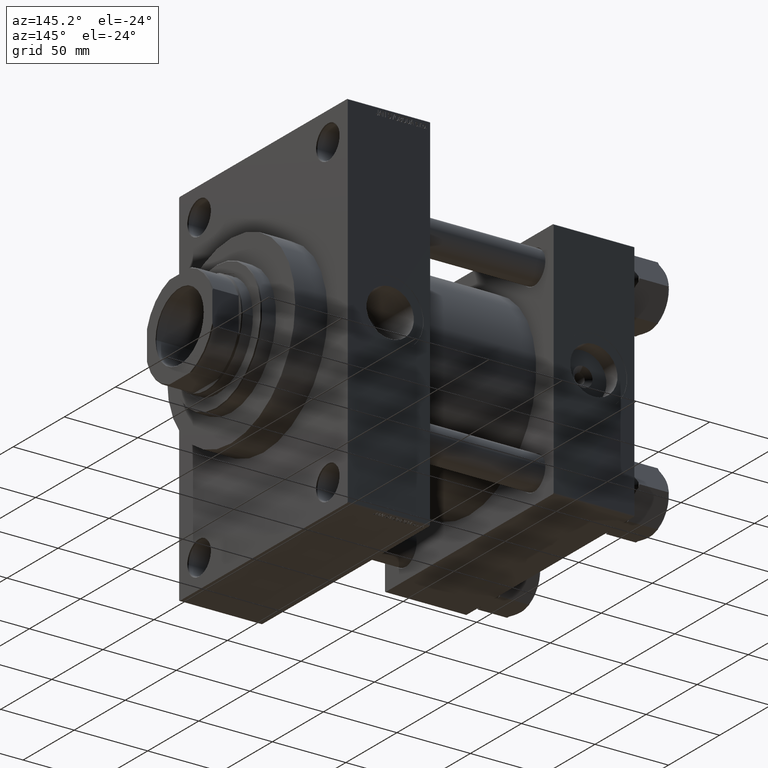
[diagram: clean part render]
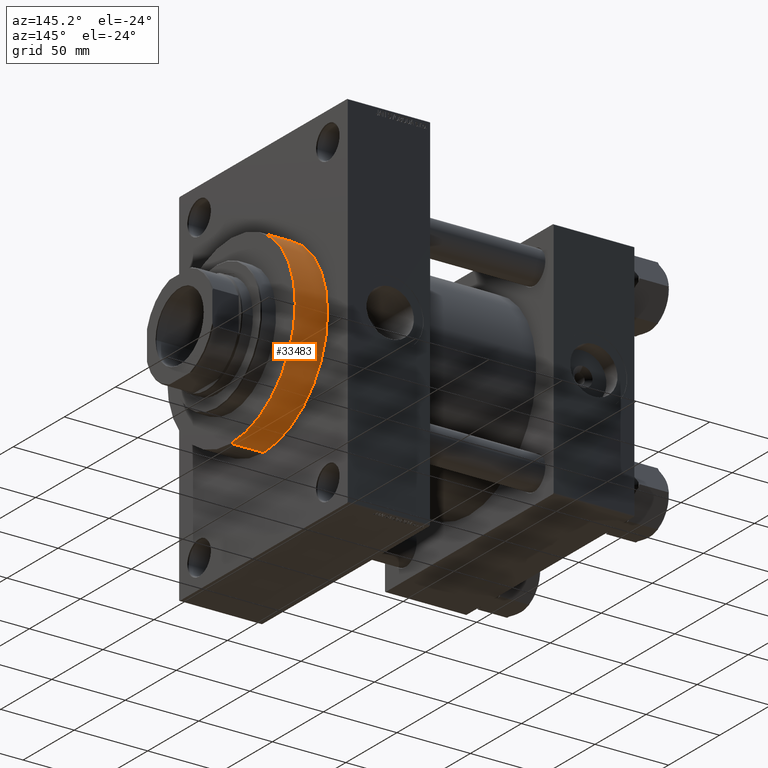
[diagram: same view with one face highlighted and labeled with its STEP entity id]
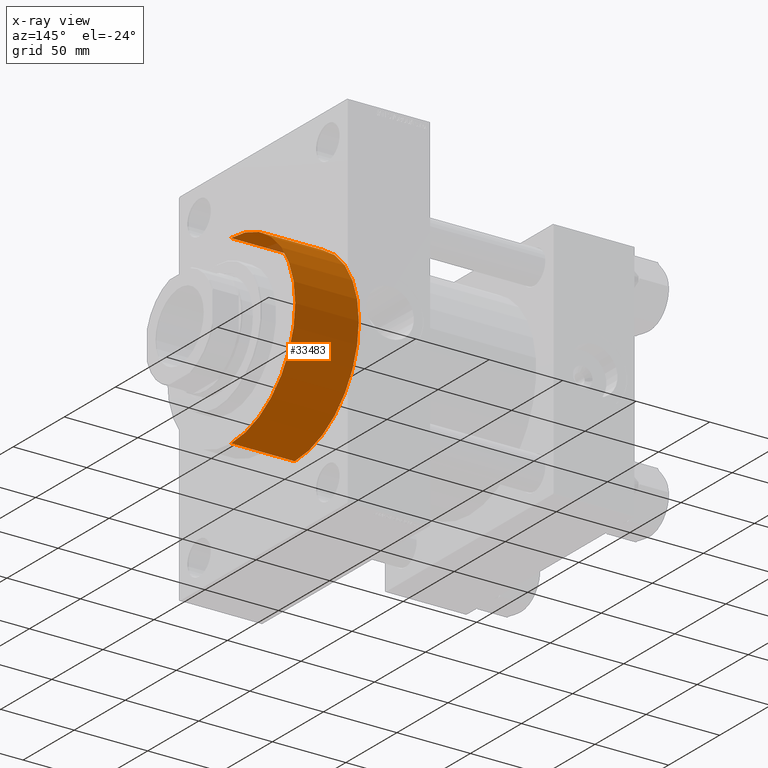
[diagram: x-ray of the same camera — body ghosted, the highlighted face saturated]
A machine part, auxiliary view. The second image highlights one B-rep face of the part: STEP entity #33483.
The next image is the same camera in x-ray: the body ghosted, the highlighted face saturated — about 1% of this face is hidden behind the body in this view.
In plain terms, the highlighted cylindrical surface (partial cylindrical patch) has radius 62.75 mm, axis along (-1, 0, 0).
Its self-contained STEP definition (entity closure, byte-faithful):
#314 = LINE ( 'NONE', #29753, #21093 ) ;
#913 = CARTESIAN_POINT ( 'NONE',  ( 0.000000000000000000, 0.000000000000000000, 0.000000000000000000 ) ) ;
#1051 = AXIS2_PLACEMENT_3D ( 'NONE', #12360, #30468, #37469 ) ;
#1157 = CIRCLE ( 'NONE', #7315, 62.75000000000000000 ) ;
#2968 = CARTESIAN_POINT ( 'NONE',  ( 62.75000000000000000, 7.684658664649641591E-15, 43.25999999999999801 ) ) ;
#3155 = DIRECTION ( 'NONE',  ( -0.000000000000000000, -0.000000000000000000, -1.000000000000000000 ) ) ;
#3380 = EDGE_CURVE ( 'NONE', #8808, #31578, #22916, .T. ) ;
#5765 = VECTOR ( 'NONE', #3155, 1000.000000000000000 ) ;
#5876 = EDGE_LOOP ( 'NONE', ( #29014, #43975, #9457, #23839 ) ) ;
#6010 = DIRECTION ( 'NONE',  ( 1.000000000000000000, 0.000000000000000000, 0.000000000000000000 ) ) ;
#7315 = AXIS2_PLACEMENT_3D ( 'NONE', #23617, #8669, #6010 ) ;
#8669 = DIRECTION ( 'NONE',  ( 0.000000000000000000, 0.000000000000000000, 1.000000000000000000 ) ) ;
#8808 = VERTEX_POINT ( 'NONE', #46400 ) ;
#9457 = ORIENTED_EDGE ( 'NONE', *, *, #36617, .T. ) ;
#12360 = CARTESIAN_POINT ( 'NONE',  ( 0.000000000000000000, 0.000000000000000000, 43.25999999999999801 ) ) ;
#17705 = DIRECTION ( 'NONE',  ( -0.000000000000000000, -0.000000000000000000, -1.000000000000000000 ) ) ;
#18342 = LINE ( 'NONE', #40063, #5765 ) ;
#21093 = VECTOR ( 'NONE', #17705, 1000.000000000000000 ) ;
#22736 = FACE_OUTER_BOUND ( 'NONE', #5876, .T. ) ;
#22916 = CIRCLE ( 'NONE', #39919, 62.75000000000000000 ) ;
#23617 = CARTESIAN_POINT ( 'NONE',  ( 0.000000000000000000, 0.000000000000000000, 43.25999999999999801 ) ) ;
#23839 = ORIENTED_EDGE ( 'NONE', *, *, #3380, .T. ) ;
#25563 = VERTEX_POINT ( 'NONE', #2968 ) ;
#25771 = DIRECTION ( 'NONE',  ( 0.000000000000000000, 0.000000000000000000, 1.000000000000000000 ) ) ;
#26009 = DIRECTION ( 'NONE',  ( 1.000000000000000000, 0.000000000000000000, 0.000000000000000000 ) ) ;
#29014 = ORIENTED_EDGE ( 'NONE', *, *, #33297, .F. ) ;
#29753 = CARTESIAN_POINT ( 'NONE',  ( 62.75000000000000000, 7.684658664649641591E-15, 43.25999999999999801 ) ) ;
#30001 = VERTEX_POINT ( 'NONE', #42408 ) ;
#30180 = CARTESIAN_POINT ( 'NONE',  ( 62.75000000000000000, 7.684658664649641591E-15, 0.000000000000000000 ) ) ;
#30468 = DIRECTION ( 'NONE',  ( -0.000000000000000000, -0.000000000000000000, -1.000000000000000000 ) ) ;
#31578 = VERTEX_POINT ( 'NONE', #30180 ) ;
#33297 = EDGE_CURVE ( 'NONE', #25563, #31578, #314, .T. ) ;
#33483 = ADVANCED_FACE ( 'NONE', ( #22736 ), #45169, .T. ) ;
#36617 = EDGE_CURVE ( 'NONE', #30001, #8808, #18342, .T. ) ;
#36792 = EDGE_CURVE ( 'NONE', #30001, #25563, #1157, .T. ) ;
#37469 = DIRECTION ( 'NONE',  ( -1.000000000000000000, 0.000000000000000000, 0.000000000000000000 ) ) ;
#39919 = AXIS2_PLACEMENT_3D ( 'NONE', #913, #25771, #26009 ) ;
#40063 = CARTESIAN_POINT ( 'NONE',  ( -62.75000000000000000, 0.000000000000000000, 43.25999999999999801 ) ) ;
#42408 = CARTESIAN_POINT ( 'NONE',  ( -62.75000000000000000, 0.000000000000000000, 43.25999999999999801 ) ) ;
#43975 = ORIENTED_EDGE ( 'NONE', *, *, #36792, .F. ) ;
#45169 = CYLINDRICAL_SURFACE ( 'NONE', #1051, 62.75000000000000000 ) ;
#46400 = CARTESIAN_POINT ( 'NONE',  ( -62.75000000000000000, 0.000000000000000000, 0.000000000000000000 ) ) ;